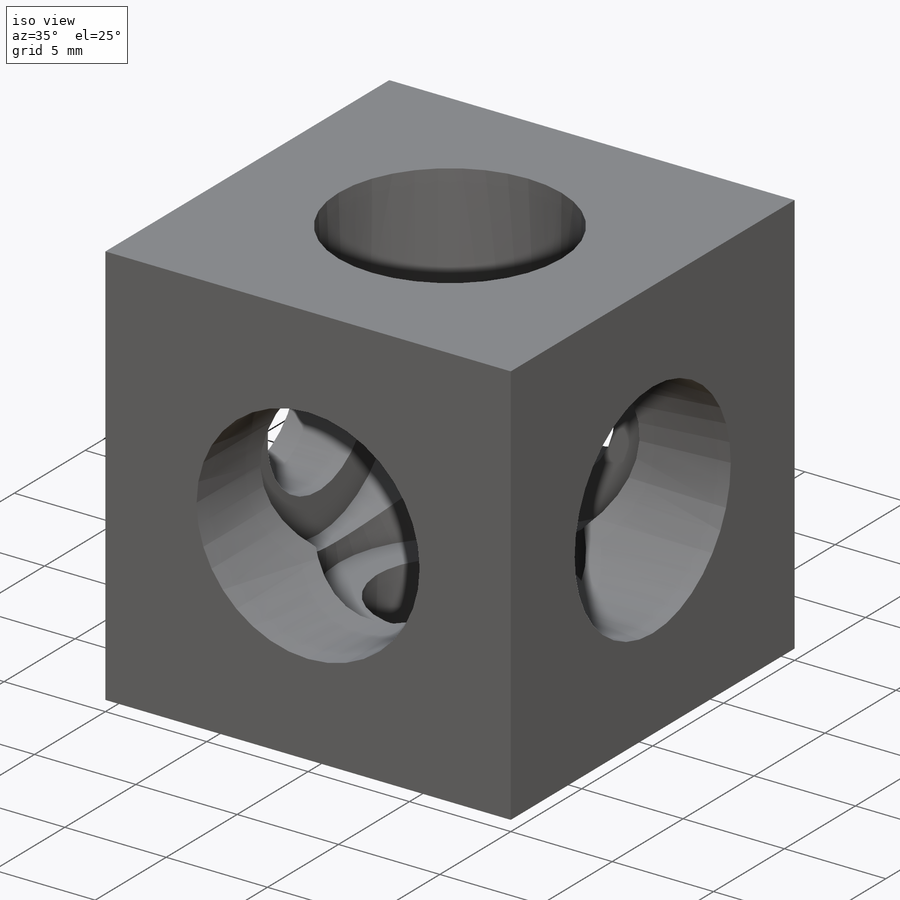
[diagram: iso view]
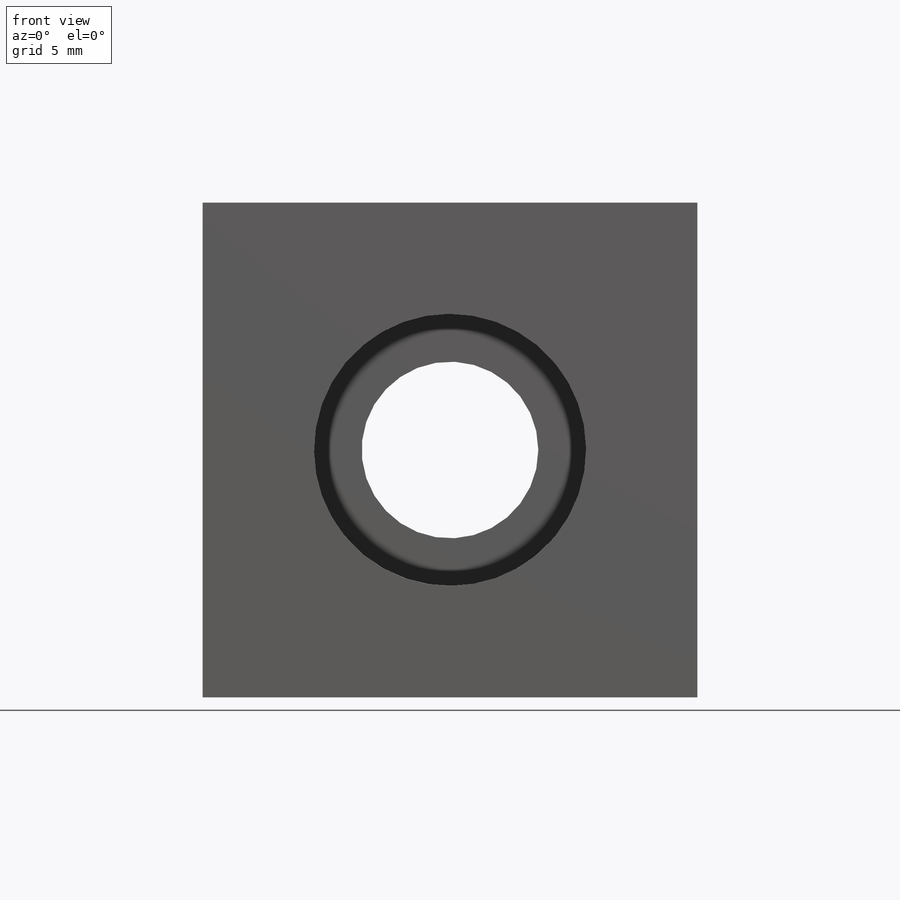
[diagram: front view]
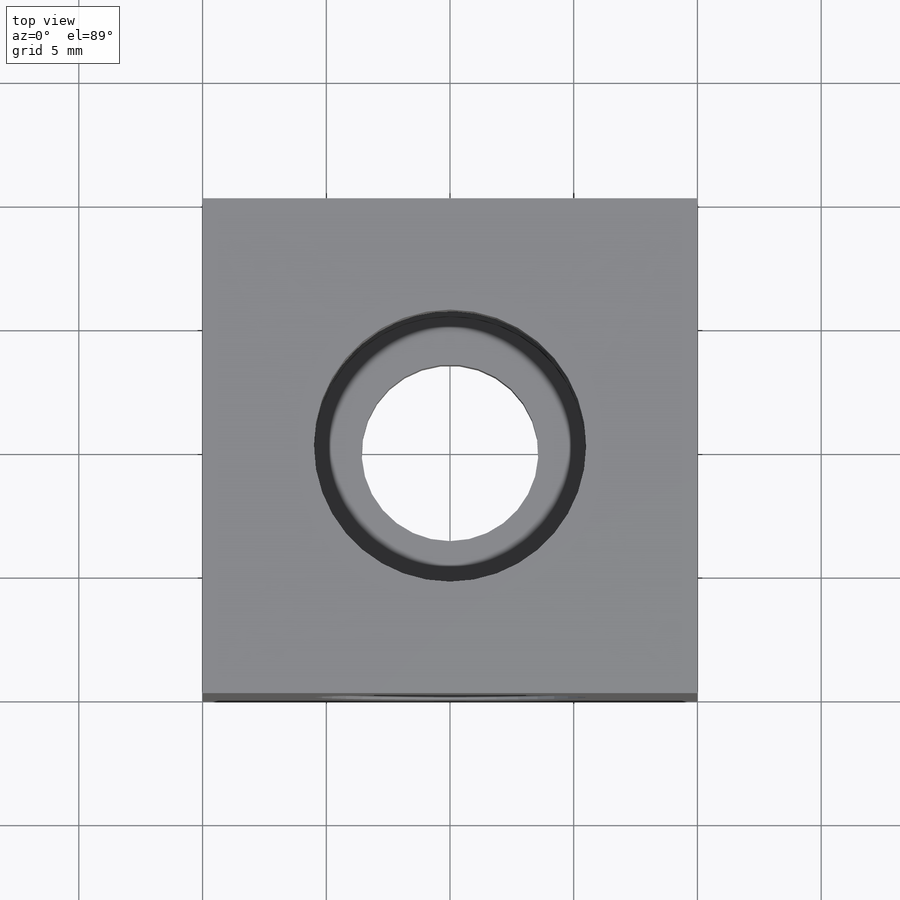
[diagram: top view]
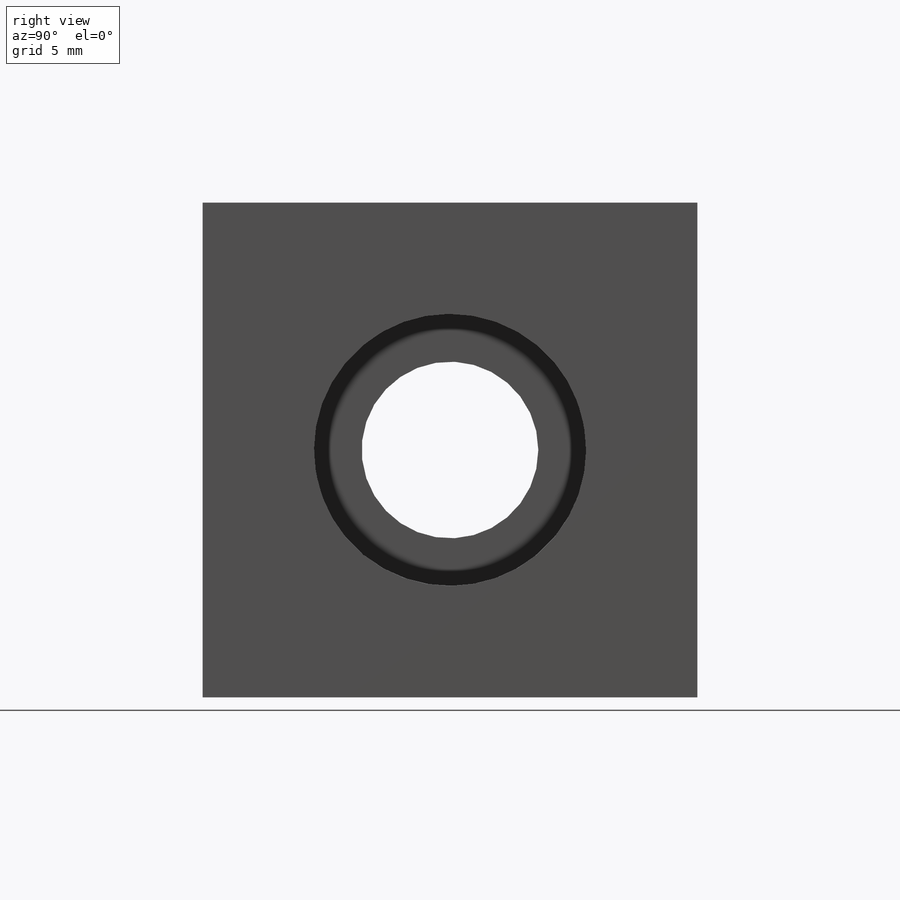
[diagram: right view]
SOLIDWORKS PART (.sldprt)
format: sldprt  version: not decoded by parser v0  size: 216,576 bytes
history: native  units: mm
features: sketch x7, cut_extrude x6, plane x3, material x1, extrude x1 (+9 scaffold rows collapsed)
feature tree (27):
  scaffold x9  (default folders/planes/origin — collapsed)
  material  "CA"
  plane  "Plan de face"
  plane  "Plan de dessus"
  plane  "Plan de droite"
  sketch  "Esquisse1"  dims[D1=20.0mm]
  extrude  "Boss.-Extru.1"  Depth=20mm
  sketch  "Esquisse2"  dims[D1=7.14mm]
  cut_extrude  "Enlèv. mat.-Extru.1"  [1 undecoded]
  sketch  "Esquisse3"  dims[D1=11.0mm]
  cut_extrude  "Enlèv. mat.-Extru.2"  Depth=3.5mm
  sketch  "Esquisse4"  dims[D1=7.14mm]
  cut_extrude  "Enlèv. mat.-Extru.3"  [1 undecoded]
  sketch  "Esquisse5"  dims[D1=11.0mm]
  cut_extrude  "Enlèv. mat.-Extru.4"  Depth=3.5mm
  sketch  "Esquisse6"  dims[D1=7.14mm]
  cut_extrude  "Enlèv. mat.-Extru.5"  [1 undecoded]
  sketch  "Esquisse7"  dims[D1=11.0mm]
  cut_extrude  "Enlèv. mat.-Extru.6"  Depth=3.5mm
decode coverage: 11 of 14 modeling features carry decoded parameters
note: 3 parameter values undecoded
summary: no parameter record found for 3 features
note: suppression state not decoded; provenance and decode notes live in map.json
